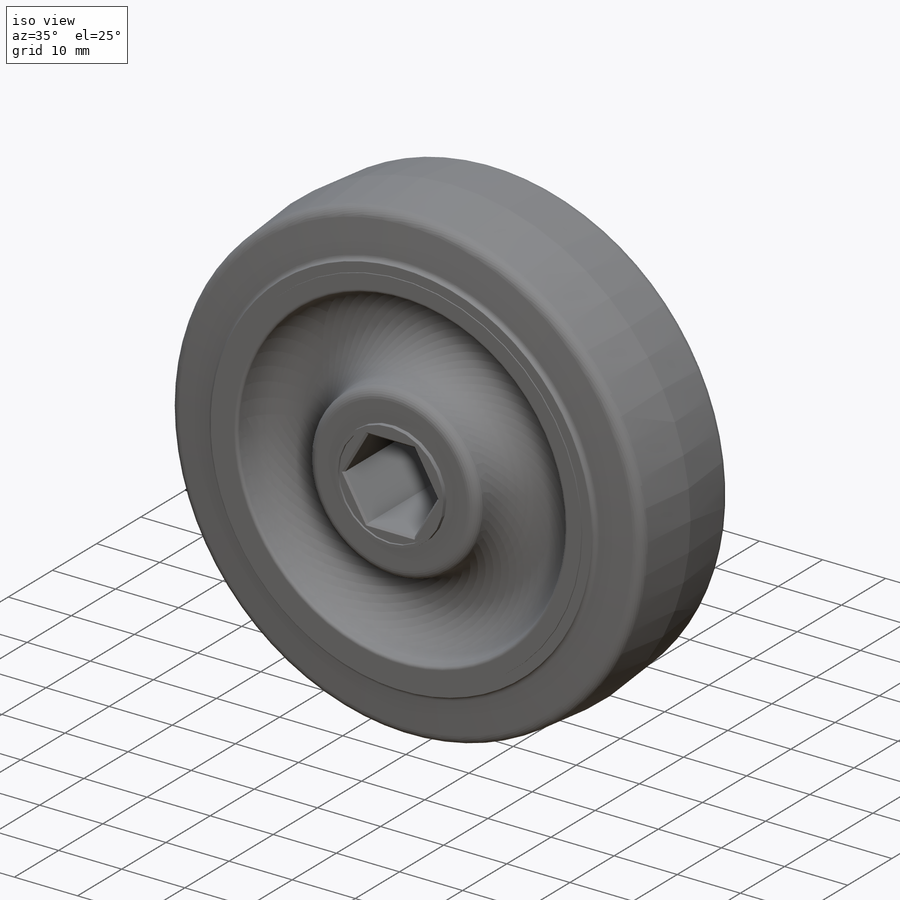
[diagram: iso view]
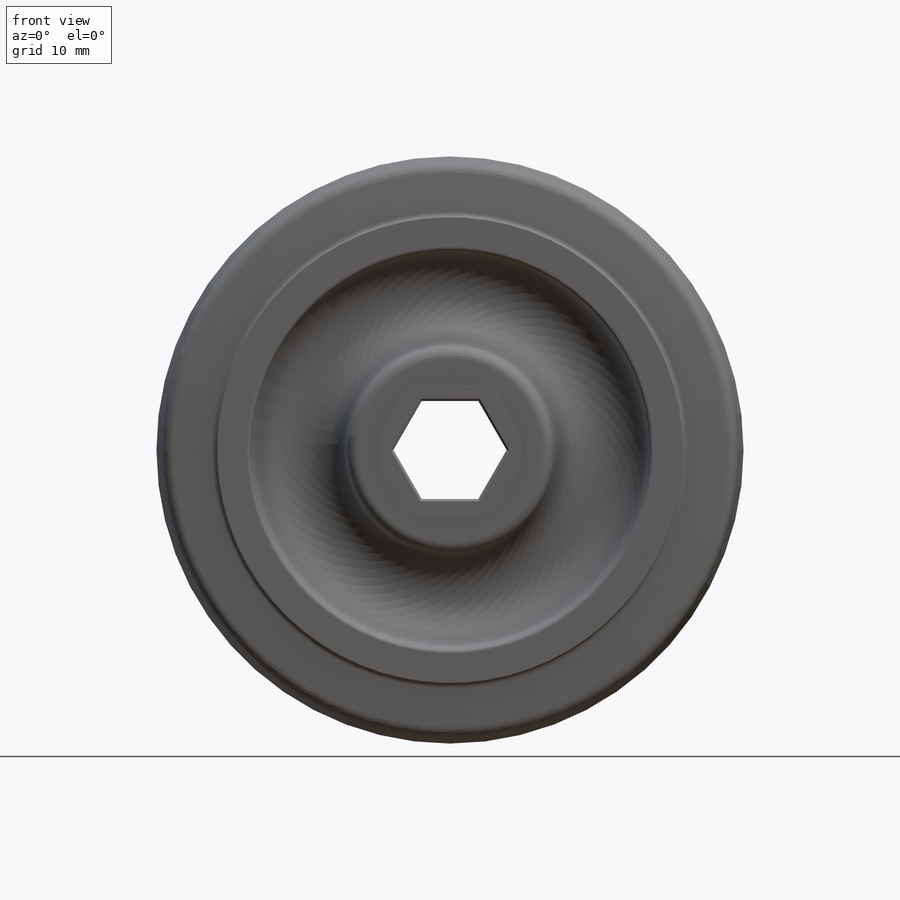
[diagram: front view]
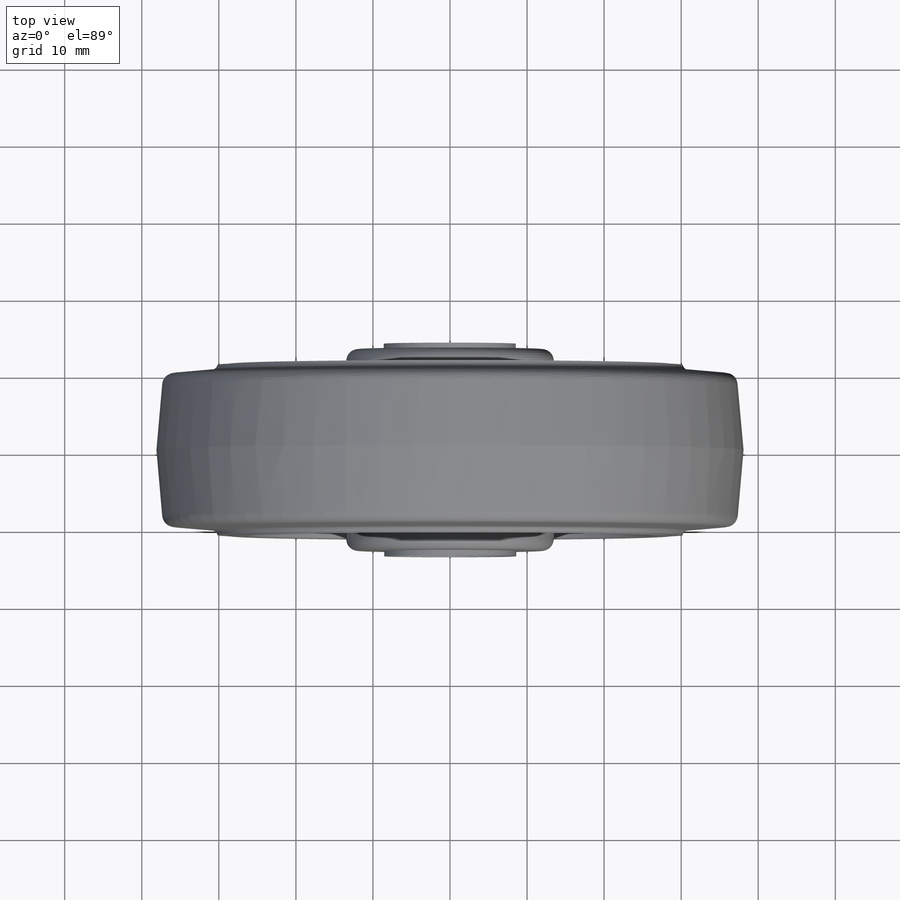
[diagram: top view]
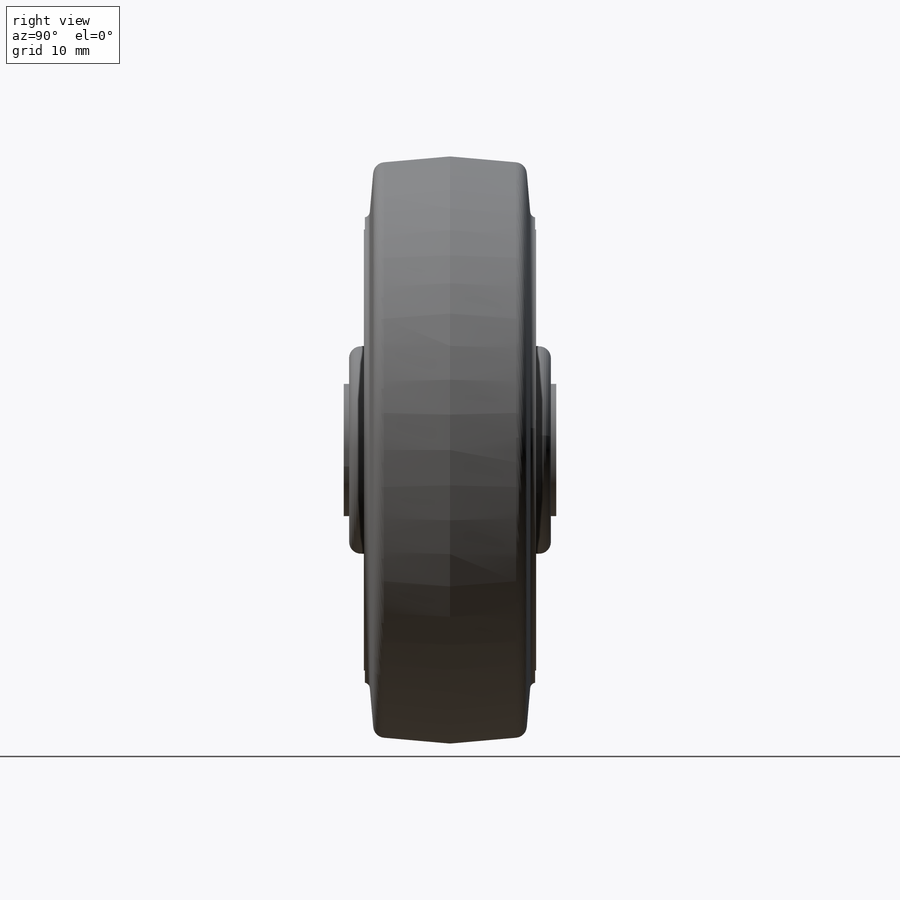
[diagram: right view]
SOLIDWORKS PART (.sldprt)
format: sldprt  version: not decoded by parser v0  size: 425,472 bytes
history: native  units: mm
features: sketch x8, extrude x2, hole x2, fillet x2, material x1, revolve x1, cut_extrude x1, chamfer x1 (+13 scaffold rows collapsed)
feature tree (31):
  scaffold x13  (default folders/planes/origin — collapsed)
  material  "Material <not specified>"
  sketch  "Sketch1"
  revolve  "Revolve1"  Angle=360deg
  sketch  "Sketch2"
  extrude  "Boss-Extrude1"  Depth=0.70005mm
  sketch  "Sketch3"
  extrude  "Boss-Extrude2"  Depth=0.70005mm
  hole  "Hole1"  Diameter=16.2mm Depth=0.3mm
  sketch  "Sketch5"
  sketch  "Sketch4"  dims[Minor Diameter=16.2mm Depth=0.3mm Major Diameter=~16.205236mm]
  hole  "Hole2"  Diameter=16.2mm Depth=0.3mm
  sketch  "Sketch7"
  sketch  "Sketch6"  dims[Minor Diameter=16.2mm Depth=0.3mm Major Diameter=~16.205236mm]
  sketch  "Sketch8"
  cut_extrude  "Cut-Extrude1"  Depth=26.9875mm
  chamfer  "Chamfer1"  Distance=0.3mm Angle=45deg
  fillet  "Fillet1"  Radius=0.508mm
  fillet  "Fillet2"  Radius=1.524mm
decode coverage: 11 of 17 modeling features carry decoded parameters
note: ~ marks probable driven/reference dimensions
note: suppression state not decoded; provenance and decode notes live in map.json
